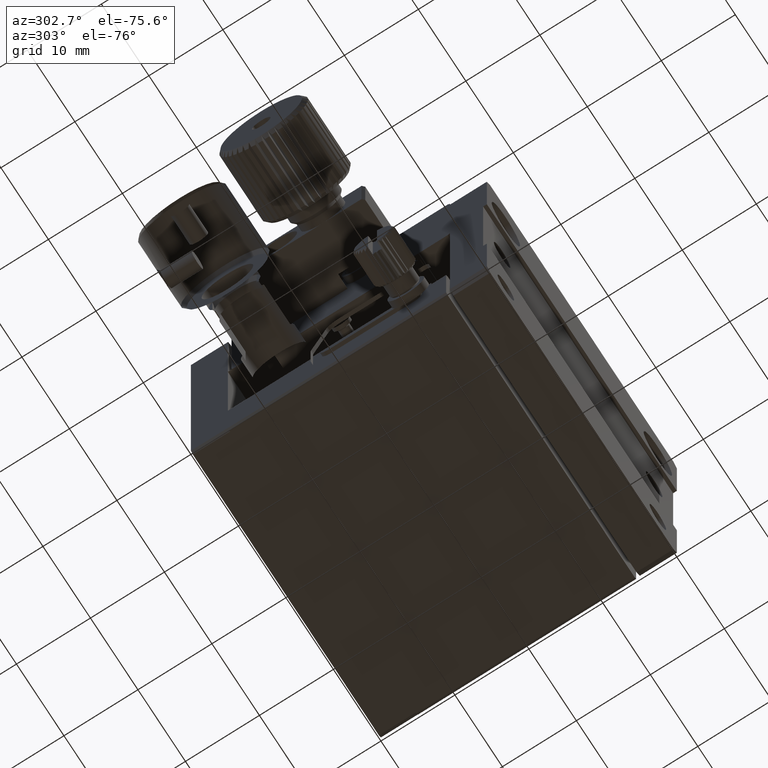
[diagram: clean part render]
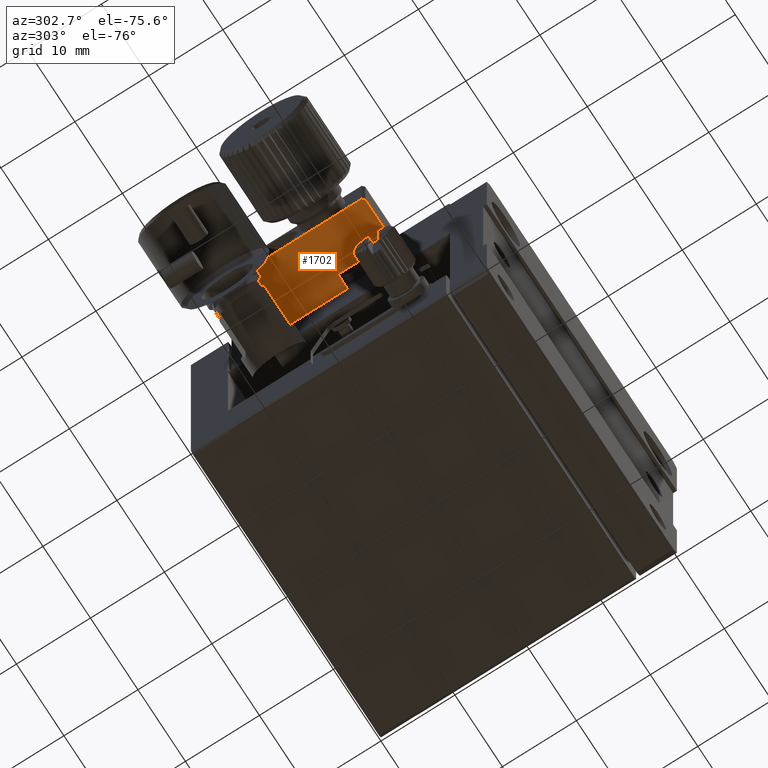
[diagram: same view with one face highlighted and labeled with its STEP entity id]
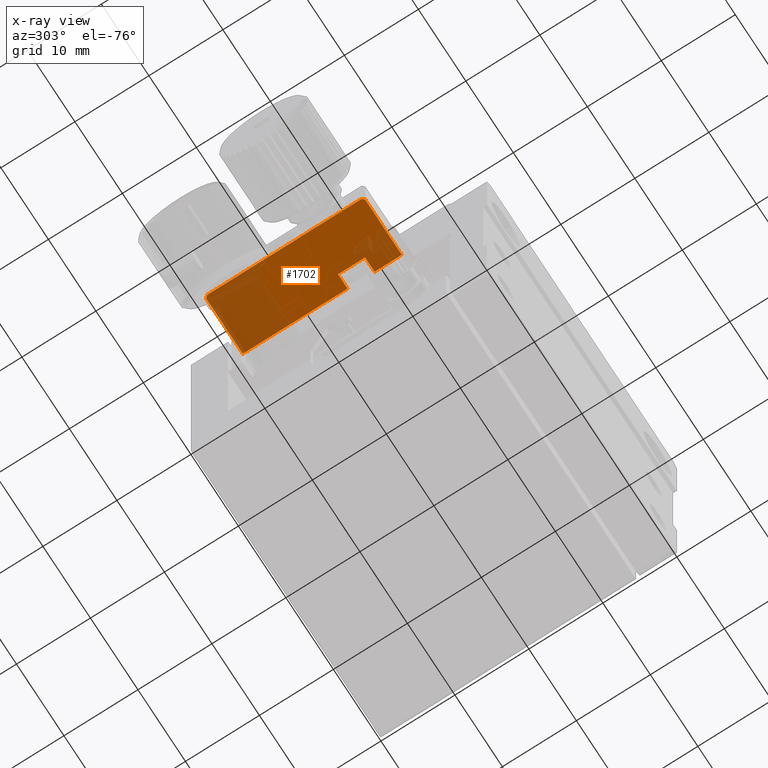
[diagram: x-ray of the same camera — body ghosted, the highlighted face saturated]
A machine part, auxiliary view. The second image highlights one B-rep face of the part: STEP entity #1702.
The next image is the same camera in x-ray: the body ghosted, the highlighted face saturated — about 41% of this face is hidden behind the body in this view.
In plain terms, the highlighted planar face has unit normal (0, 0, -1).
Its self-contained STEP definition (entity closure, byte-faithful):
#104 = CARTESIAN_POINT ( 'NONE',  ( -8.000000000000000000, 0.000000000000000000, -10.00000000000000000 ) ) ;
#218 = VECTOR ( 'NONE', #19197, 1000.000000000000000 ) ;
#504 = CARTESIAN_POINT ( 'NONE',  ( -8.000000000000000000, 32.70000000000000995, -10.00000000000000000 ) ) ;
#550 = VECTOR ( 'NONE', #11321, 1000.000000000000000 ) ;
#826 = ORIENTED_EDGE ( 'NONE', *, *, #3126, .T. ) ;
#862 = VECTOR ( 'NONE', #1663, 999.9999999999998863 ) ;
#1030 = DIRECTION ( 'NONE',  ( -1.000000000000000000, 0.000000000000000000, 0.000000000000000000 ) ) ;
#1037 = DIRECTION ( 'NONE',  ( 1.000000000000000000, -0.000000000000000000, -0.000000000000000000 ) ) ;
#1258 = EDGE_LOOP ( 'NONE', ( #8910, #10597, #3948, #826, #9328, #13082, #5692, #2825, #5940, #15879, #10106 ) ) ;
#1355 = LINE ( 'NONE', #13324, #862 ) ;
#1395 = VERTEX_POINT ( 'NONE', #18146 ) ;
#1663 = DIRECTION ( 'NONE',  ( -0.7071067811865464625, 0.7071067811865486830, -0.000000000000000000 ) ) ;
#1702 = ADVANCED_FACE ( 'NONE', ( #12353 ), #10878, .T. ) ;
#2211 = CARTESIAN_POINT ( 'NONE',  ( -8.000000000000000000, 32.70000000000000995, -10.00000000000000000 ) ) ;
#2352 = DIRECTION ( 'NONE',  ( 1.000000000000000000, -0.000000000000000000, -0.000000000000000000 ) ) ;
#2473 = CARTESIAN_POINT ( 'NONE',  ( -8.000000000000000000, 0.000000000000000000, -10.00000000000000000 ) ) ;
#2674 = CARTESIAN_POINT ( 'NONE',  ( -7.999999999999998224, 11.80000000000000249, -10.00000000000000000 ) ) ;
#2716 = CARTESIAN_POINT ( 'NONE',  ( 0.000000000000000000, 15.17699999999999960, -10.00000000000000000 ) ) ;
#2746 = LINE ( 'NONE', #19039, #10428 ) ;
#2825 = ORIENTED_EDGE ( 'NONE', *, *, #7644, .T. ) ;
#3126 = EDGE_CURVE ( 'NONE', #1395, #13192, #2746, .T. ) ;
#3824 = AXIS2_PLACEMENT_3D ( 'NONE', #5464, #16049, #1030 ) ;
#3948 = ORIENTED_EDGE ( 'NONE', *, *, #4624, .T. ) ;
#4624 = EDGE_CURVE ( 'NONE', #7834, #1395, #7141, .T. ) ;
#4625 = DIRECTION ( 'NONE',  ( 0.000000000000000000, 1.000000000000000000, 0.000000000000000000 ) ) ;
#4728 = VERTEX_POINT ( 'NONE', #2716 ) ;
#5056 = CARTESIAN_POINT ( 'NONE',  ( 0.000000000000000000, 18.82199999999999918, -10.00000000000000000 ) ) ;
#5092 = VERTEX_POINT ( 'NONE', #10345 ) ;
#5464 = CARTESIAN_POINT ( 'NONE',  ( 0.000000000000000000, 0.000000000000000000, -10.00000000000000000 ) ) ;
#5575 = VECTOR ( 'NONE', #4625, 1000.000000000000000 ) ;
#5692 = ORIENTED_EDGE ( 'NONE', *, *, #8769, .T. ) ;
#5764 = CARTESIAN_POINT ( 'NONE',  ( 0.000000000000000000, 33.00000000000000000, -10.00000000000000000 ) ) ;
#5934 = VERTEX_POINT ( 'NONE', #17836 ) ;
#5940 = ORIENTED_EDGE ( 'NONE', *, *, #6132, .T. ) ;
#5955 = CARTESIAN_POINT ( 'NONE',  ( 0.000000000000000000, 0.000000000000000000, -10.00000000000000000 ) ) ;
#6132 = EDGE_CURVE ( 'NONE', #15155, #5934, #13991, .T. ) ;
#6487 = EDGE_CURVE ( 'NONE', #5092, #12072, #11835, .T. ) ;
#6782 = VECTOR ( 'NONE', #9585, 1000.000000000000000 ) ;
#6861 = VERTEX_POINT ( 'NONE', #2674 ) ;
#6880 = DIRECTION ( 'NONE',  ( -0.000000000000000000, -1.000000000000000000, -0.000000000000000000 ) ) ;
#7014 = VECTOR ( 'NONE', #12686, 1000.000000000000000 ) ;
#7141 = LINE ( 'NONE', #5764, #15803 ) ;
#7620 = CARTESIAN_POINT ( 'NONE',  ( -7.699999999999981526, 32.99999999999999289, -10.00000000000000000 ) ) ;
#7627 = VECTOR ( 'NONE', #8468, 1000.000000000000000 ) ;
#7644 = EDGE_CURVE ( 'NONE', #4728, #15155, #13403, .T. ) ;
#7834 = VERTEX_POINT ( 'NONE', #7620 ) ;
#7939 = EDGE_CURVE ( 'NONE', #17911, #7834, #18786, .T. ) ;
#8468 = DIRECTION ( 'NONE',  ( 0.000000000000000000, 1.000000000000000000, 0.000000000000000000 ) ) ;
#8769 = EDGE_CURVE ( 'NONE', #12072, #4728, #12567, .T. ) ;
#8910 = ORIENTED_EDGE ( 'NONE', *, *, #10987, .T. ) ;
#9164 = CARTESIAN_POINT ( 'NONE',  ( -2.000000000000000000, 15.17699999999999960, -10.00000000000000000 ) ) ;
#9328 = ORIENTED_EDGE ( 'NONE', *, *, #11700, .T. ) ;
#9585 = DIRECTION ( 'NONE',  ( -1.000000000000000000, 0.000000000000000000, 0.000000000000000000 ) ) ;
#10106 = ORIENTED_EDGE ( 'NONE', *, *, #15230, .T. ) ;
#10345 = CARTESIAN_POINT ( 'NONE',  ( -2.000000000000000000, 18.82199999999999918, -10.00000000000000000 ) ) ;
#10428 = VECTOR ( 'NONE', #6880, 1000.000000000000000 ) ;
#10597 = ORIENTED_EDGE ( 'NONE', *, *, #7939, .T. ) ;
#10606 = LINE ( 'NONE', #104, #5575 ) ;
#10878 = PLANE ( 'NONE',  #3824 ) ;
#10987 = EDGE_CURVE ( 'NONE', #14819, #17911, #15918, .T. ) ;
#11321 = DIRECTION ( 'NONE',  ( 0.7071067811865829889, 0.7071067811865120456, 0.000000000000000000 ) ) ;
#11700 = EDGE_CURVE ( 'NONE', #13192, #5092, #16834, .T. ) ;
#11808 = CARTESIAN_POINT ( 'NONE',  ( -8.000000000000000000, 17.00000000000000000, -10.00000000000000000 ) ) ;
#11835 = LINE ( 'NONE', #14475, #14615 ) ;
#12072 = VERTEX_POINT ( 'NONE', #9164 ) ;
#12353 = FACE_OUTER_BOUND ( 'NONE', #1258, .T. ) ;
#12478 = CARTESIAN_POINT ( 'NONE',  ( 0.000000000000000000, 15.17699999999999960, -10.00000000000000000 ) ) ;
#12567 = LINE ( 'NONE', #12478, #16223 ) ;
#12686 = DIRECTION ( 'NONE',  ( -1.000000000000000000, 0.000000000000000000, 0.000000000000000000 ) ) ;
#13082 = ORIENTED_EDGE ( 'NONE', *, *, #6487, .T. ) ;
#13192 = VERTEX_POINT ( 'NONE', #14361 ) ;
#13324 = CARTESIAN_POINT ( 'NONE',  ( -7.699999999999990408, 11.50000000000000000, -10.00000000000000000 ) ) ;
#13403 = LINE ( 'NONE', #5955, #218 ) ;
#13991 = LINE ( 'NONE', #15661, #6782 ) ;
#14361 = CARTESIAN_POINT ( 'NONE',  ( 0.000000000000000000, 18.82199999999999918, -10.00000000000000000 ) ) ;
#14475 = CARTESIAN_POINT ( 'NONE',  ( -2.000000000000000000, 0.000000000000000000, -10.00000000000000000 ) ) ;
#14615 = VECTOR ( 'NONE', #17818, 1000.000000000000000 ) ;
#14819 = VERTEX_POINT ( 'NONE', #11808 ) ;
#15155 = VERTEX_POINT ( 'NONE', #15906 ) ;
#15230 = EDGE_CURVE ( 'NONE', #6861, #14819, #10606, .T. ) ;
#15661 = CARTESIAN_POINT ( 'NONE',  ( 0.000000000000000000, 11.50000000000000000, -10.00000000000000000 ) ) ;
#15803 = VECTOR ( 'NONE', #1037, 1000.000000000000000 ) ;
#15879 = ORIENTED_EDGE ( 'NONE', *, *, #16877, .T. ) ;
#15906 = CARTESIAN_POINT ( 'NONE',  ( 0.000000000000000000, 11.50000000000000000, -10.00000000000000000 ) ) ;
#15918 = LINE ( 'NONE', #2473, #7627 ) ;
#16049 = DIRECTION ( 'NONE',  ( 0.000000000000000000, 0.000000000000000000, -1.000000000000000000 ) ) ;
#16223 = VECTOR ( 'NONE', #2352, 1000.000000000000000 ) ;
#16834 = LINE ( 'NONE', #5056, #7014 ) ;
#16877 = EDGE_CURVE ( 'NONE', #5934, #6861, #1355, .T. ) ;
#17818 = DIRECTION ( 'NONE',  ( -0.000000000000000000, -1.000000000000000000, -0.000000000000000000 ) ) ;
#17836 = CARTESIAN_POINT ( 'NONE',  ( -7.699999999999990408, 11.50000000000000000, -10.00000000000000000 ) ) ;
#17911 = VERTEX_POINT ( 'NONE', #504 ) ;
#18146 = CARTESIAN_POINT ( 'NONE',  ( 0.000000000000000000, 33.00000000000000000, -10.00000000000000000 ) ) ;
#18786 = LINE ( 'NONE', #2211, #550 ) ;
#19039 = CARTESIAN_POINT ( 'NONE',  ( 0.000000000000000000, 0.000000000000000000, -10.00000000000000000 ) ) ;
#19197 = DIRECTION ( 'NONE',  ( -0.000000000000000000, -1.000000000000000000, -0.000000000000000000 ) ) ;